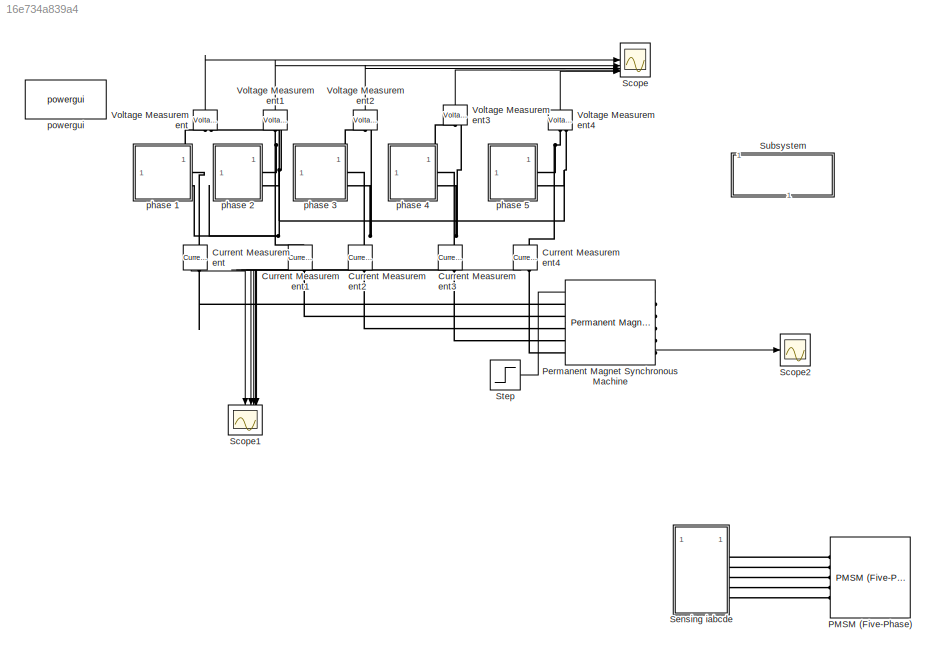
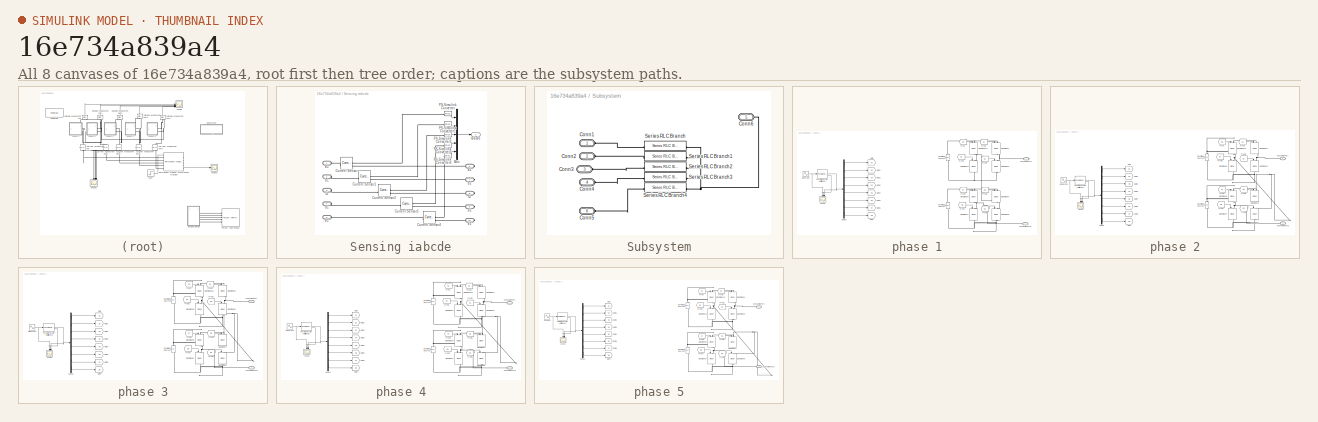
[diagram: thumbnail index - all 8 canvases of the model, root first then tree order]
MODEL slx_16e734a839a4
KIND model
CONFIG AbsTol = auto
CONFIG EnableMultiTasking = off
CONFIG FixedStep = 1e-6
CONFIG MaxStep = auto
CONFIG MinStep = auto
CONFIG RelTol = 1e-3
CONFIG SampleTimeConstraint = Unconstrained
CONFIG SolverName = ode23tb
CONFIG StartTime = 0.0
CONFIG StopTime = 60e-3
BLOCK [Reference] Current Measurement  REF=spsCurrentMeasurementLib/Current Measurement
  LibrarySourceBlock = sps_lib/Sensors and Measurements/Current Measurement
  NameLocation = left
  SourceBlock = spsCurrentMeasurementLib/Current Measurement
  SourceType = Current Measurement
  UserDataPersistent = on
BLOCK [Reference] Current Measurement1  REF=spsCurrentMeasurementLib/Current Measurement
  LibrarySourceBlock = sps_lib/Sensors and Measurements/Current Measurement
  NameLocation = left
  SourceBlock = spsCurrentMeasurementLib/Current Measurement
  SourceType = Current Measurement
  UserDataPersistent = on
BLOCK [Reference] Current Measurement2  REF=spsCurrentMeasurementLib/Current Measurement
  LibrarySourceBlock = sps_lib/Sensors and Measurements/Current Measurement
  NameLocation = left
  SourceBlock = spsCurrentMeasurementLib/Current Measurement
  SourceType = Current Measurement
  UserDataPersistent = on
BLOCK [Reference] Current Measurement3  REF=spsCurrentMeasurementLib/Current Measurement
  LibrarySourceBlock = sps_lib/Sensors and Measurements/Current Measurement
  NameLocation = left
  SourceBlock = spsCurrentMeasurementLib/Current Measurement
  SourceType = Current Measurement
  UserDataPersistent = on
BLOCK [Reference] Current Measurement4  REF=spsCurrentMeasurementLib/Current Measurement
  LibrarySourceBlock = sps_lib/Sensors and Measurements/Current Measurement
  NameLocation = left
  SourceBlock = spsCurrentMeasurementLib/Current Measurement
  SourceType = Current Measurement
  UserDataPersistent = on
BLOCK [Reference] PMSM (Five-Phase)  REF=ee_lib/Electromechanical/Permanent Magnet/PMSM (Five-Phase)
  SourceBlock = ee_lib/Electromechanical/Permanent Magnet/PMSM (Five-Phase)
  SourceType = PMSM (Five-Phase)
BLOCK [Reference] Permanent Magnet Synchronous Machine  REF=spsPermanentMagnetSynchronousMachineLib/Permanent Magnet
Synchronous Machine
  LibrarySourceBlock = sps_lib/Electrical Machines/Permanent Magnet\nSynchronous Machine
  SourceBlock = spsPermanentMagnetSynchronousMachineLib/Permanent Magnet\nSynchronous Machine
  SourceType = Permanent Magnet Synchronous Machine
BLOCK [Scope] Scope
  Floating = off
  NumInputPorts = 5
  ScopeSpecificationString = Simulink.scopes.TimeScopeBlockCfg('CurrentConfiguration', extmgr.ConfigurationSet(extmgr.Configuration('Core','General UI',true),extmgr.Configuration('Core','Source UI',true),extmgr.Configuration('Sources','WiredSimulink',true,'DataLogging',true,'DataLoggingSaveFormat','StructureWithTime'),extmgr.Configuration('Visuals','Time Domain',true,'SerializedDisplays',{struct('MinYLimReal','-250.00198','Ma...<+3684ch>
BLOCK [Scope] Scope1
  Floating = off
  NameLocation = left
  NumInputPorts = 5
  ScopeSpecificationString = Simulink.scopes.TimeScopeBlockCfg('CurrentConfiguration', extmgr.ConfigurationSet(extmgr.Configuration('Core','General UI',true),extmgr.Configuration('Core','Source UI',true),extmgr.Configuration('Sources','WiredSimulink',true,'DataLoggingVariableName','ScopeData2','DataLogging',true,'DataLoggingSaveFormat','StructureWithTime'),extmgr.Configuration('Visuals','Time Domain',true,'SerializedDisplays'...<+1578ch>
BLOCK [Scope] Scope2
  Floating = off
  NumInputPorts = 1
  ScopeSpecificationString = Simulink.scopes.TimeScopeBlockCfg('CurrentConfiguration', extmgr.ConfigurationSet(extmgr.Configuration('Core','General UI',true),extmgr.Configuration('Core','Source UI',true),extmgr.Configuration('Sources','WiredSimulink',true,'DataLoggingVariableName','ScopeData1','DataLogging',true,'DataLoggingSaveFormat','StructureWithTime'),extmgr.Configuration('Visuals','Time Domain',true,'SerializedDisplays'...<+2581ch>
BLOCK [SubSystem] Sensing iabcde
  PortSchema = {"entries":[{"content":{"sides":[{"content":{"connectorIds":["LConn1","LConn2","LConn3","LConn4","LConn5"]},"type":"ConnectorPlacement.EquallySpacedRectSide","uuid":"7a2f7a7f-4f61-4830-8af9-76fe1a0e4bc0"},{"content":{"connectorIds":["RConn1","RConn2","RConn3","RConn4","RConn5"],"side":"RIGHT"},"type":"ConnectorPlacement.EquallySpacedRectSide","uuid":"9fb6080c-3863-4271-b1e9-f7c8a3a18534"},{"conten...<+467ch>
BLOCK [Reference] Sensing iabcde/Current Sensor  REF=fl_lib/Electrical/Electrical Sensors/Current Sensor
  SourceBlock = fl_lib/Electrical/Electrical Sensors/Current Sensor
  SourceType = Current Sensor
BLOCK [Reference] Sensing iabcde/Current Sensor1  REF=fl_lib/Electrical/Electrical Sensors/Current Sensor
  SourceBlock = fl_lib/Electrical/Electrical Sensors/Current Sensor
  SourceType = Current Sensor
BLOCK [Reference] Sensing iabcde/Current Sensor2  REF=fl_lib/Electrical/Electrical Sensors/Current Sensor
  SourceBlock = fl_lib/Electrical/Electrical Sensors/Current Sensor
  SourceType = Current Sensor
BLOCK [Reference] Sensing iabcde/Current Sensor3  REF=fl_lib/Electrical/Electrical Sensors/Current Sensor
  SourceBlock = fl_lib/Electrical/Electrical Sensors/Current Sensor
  SourceType = Current Sensor
BLOCK [Reference] Sensing iabcde/Current Sensor4  REF=fl_lib/Electrical/Electrical Sensors/Current Sensor
  SourceBlock = fl_lib/Electrical/Electrical Sensors/Current Sensor
  SourceType = Current Sensor
BLOCK [Outport] Sensing iabcde/Iabcde
BLOCK [Mux] Sensing iabcde/Mux
  DisplayOption = bar
  Inputs = 5
BLOCK [Reference] Sensing iabcde/PS-Simulink Converter  REF=nesl_utility/PS-Simulink
Converter
  AttributesFormatString = %<Unit>
  SourceBlock = nesl_utility/PS-Simulink\nConverter
  SourceType = PS-Simulink\nConverter
BLOCK [Reference] Sensing iabcde/PS-Simulink Converter1  REF=nesl_utility/PS-Simulink
Converter
  AttributesFormatString = %<Unit>
  SourceBlock = nesl_utility/PS-Simulink\nConverter
  SourceType = PS-Simulink\nConverter
BLOCK [Reference] Sensing iabcde/PS-Simulink Converter2  REF=nesl_utility/PS-Simulink
Converter
  AttributesFormatString = %<Unit>
  SourceBlock = nesl_utility/PS-Simulink\nConverter
  SourceType = PS-Simulink\nConverter
BLOCK [Reference] Sensing iabcde/PS-Simulink Converter3  REF=nesl_utility/PS-Simulink
Converter
  AttributesFormatString = %<Unit>
  SourceBlock = nesl_utility/PS-Simulink\nConverter
  SourceType = PS-Simulink\nConverter
BLOCK [Reference] Sensing iabcde/PS-Simulink Converter4  REF=nesl_utility/PS-Simulink
Converter
  AttributesFormatString = %<Unit>
  SourceBlock = nesl_utility/PS-Simulink\nConverter
  SourceType = PS-Simulink\nConverter
BLOCK [PMIOPort] Sensing iabcde/a1
  Side = Left
BLOCK [PMIOPort] Sensing iabcde/a2
  Port = 6
  Side = Right
BLOCK [PMIOPort] Sensing iabcde/b1
  Port = 2
  Side = Left
BLOCK [PMIOPort] Sensing iabcde/b2
  Port = 7
  Side = Right
BLOCK [PMIOPort] Sensing iabcde/c1
  Port = 3
  Side = Left
BLOCK [PMIOPort] Sensing iabcde/c2
  Port = 8
  Side = Right
BLOCK [PMIOPort] Sensing iabcde/d1
  Port = 4
  Side = Left
BLOCK [PMIOPort] Sensing iabcde/d2
  Port = 9
  Side = Right
BLOCK [PMIOPort] Sensing iabcde/e1
  Port = 5
  Side = Left
BLOCK [PMIOPort] Sensing iabcde/e2
  Port = 10
  Side = Right
BLOCK [Step] Step
  SampleTime = 0
  Time = 0.5
BLOCK [SubSystem] Subsystem
  NameLocation = left
BLOCK [PMIOPort] Subsystem/Conn1
  Side = Left
BLOCK [PMIOPort] Subsystem/Conn2
  Port = 2
  Side = Left
BLOCK [PMIOPort] Subsystem/Conn3
  Port = 3
  Side = Left
BLOCK [PMIOPort] Subsystem/Conn4
  Port = 4
  Side = Left
BLOCK [PMIOPort] Subsystem/Conn5
  Port = 6
  Side = Left
BLOCK [PMIOPort] Subsystem/Conn6
  Port = 5
  Side = Left
BLOCK [Reference] Subsystem/Series RLC Branch  REF=spsSeriesRLCBranchLib/Series RLC Branch
  LibrarySourceBlock = sps_lib/Passives/Series RLC Branch
  SourceBlock = spsSeriesRLCBranchLib/Series RLC Branch
  SourceType = Series RLC Branch
BLOCK [Reference] Subsystem/Series RLC Branch1  REF=spsSeriesRLCBranchLib/Series RLC Branch
  LibrarySourceBlock = sps_lib/Passives/Series RLC Branch
  SourceBlock = spsSeriesRLCBranchLib/Series RLC Branch
  SourceType = Series RLC Branch
BLOCK [Reference] Subsystem/Series RLC Branch2  REF=spsSeriesRLCBranchLib/Series RLC Branch
  LibrarySourceBlock = sps_lib/Passives/Series RLC Branch
  SourceBlock = spsSeriesRLCBranchLib/Series RLC Branch
  SourceType = Series RLC Branch
BLOCK [Reference] Subsystem/Series RLC Branch3  REF=spsSeriesRLCBranchLib/Series RLC Branch
  LibrarySourceBlock = sps_lib/Passives/Series RLC Branch
  SourceBlock = spsSeriesRLCBranchLib/Series RLC Branch
  SourceType = Series RLC Branch
BLOCK [Reference] Subsystem/Series RLC Branch4  REF=spsSeriesRLCBranchLib/Series RLC Branch
  LibrarySourceBlock = sps_lib/Passives/Series RLC Branch
  SourceBlock = spsSeriesRLCBranchLib/Series RLC Branch
  SourceType = Series RLC Branch
BLOCK [Reference] Voltage Measurement  REF=spsVoltageMeasurementLib/Voltage Measurement
  LibrarySourceBlock = sps_lib/Sensors and Measurements/Voltage Measurement
  NameLocation = right
  SourceBlock = spsVoltageMeasurementLib/Voltage Measurement
  SourceType = Voltage Measurement
  UserDataPersistent = on
BLOCK [Reference] Voltage Measurement1  REF=spsVoltageMeasurementLib/Voltage Measurement
  LibrarySourceBlock = sps_lib/Sensors and Measurements/Voltage Measurement
  NameLocation = right
  SourceBlock = spsVoltageMeasurementLib/Voltage Measurement
  SourceType = Voltage Measurement
  UserDataPersistent = on
BLOCK [Reference] Voltage Measurement2  REF=spsVoltageMeasurementLib/Voltage Measurement
  LibrarySourceBlock = sps_lib/Sensors and Measurements/Voltage Measurement
  NameLocation = right
  SourceBlock = spsVoltageMeasurementLib/Voltage Measurement
  SourceType = Voltage Measurement
  UserDataPersistent = on
BLOCK [Reference] Voltage Measurement3  REF=spsVoltageMeasurementLib/Voltage Measurement
  LibrarySourceBlock = sps_lib/Sensors and Measurements/Voltage Measurement
  NameLocation = right
  SourceBlock = spsVoltageMeasurementLib/Voltage Measurement
  SourceType = Voltage Measurement
  UserDataPersistent = on
BLOCK [Reference] Voltage Measurement4  REF=spsVoltageMeasurementLib/Voltage Measurement
  LibrarySourceBlock = sps_lib/Sensors and Measurements/Voltage Measurement
  NameLocation = right
  SourceBlock = spsVoltageMeasurementLib/Voltage Measurement
  SourceType = Voltage Measurement
  UserDataPersistent = on
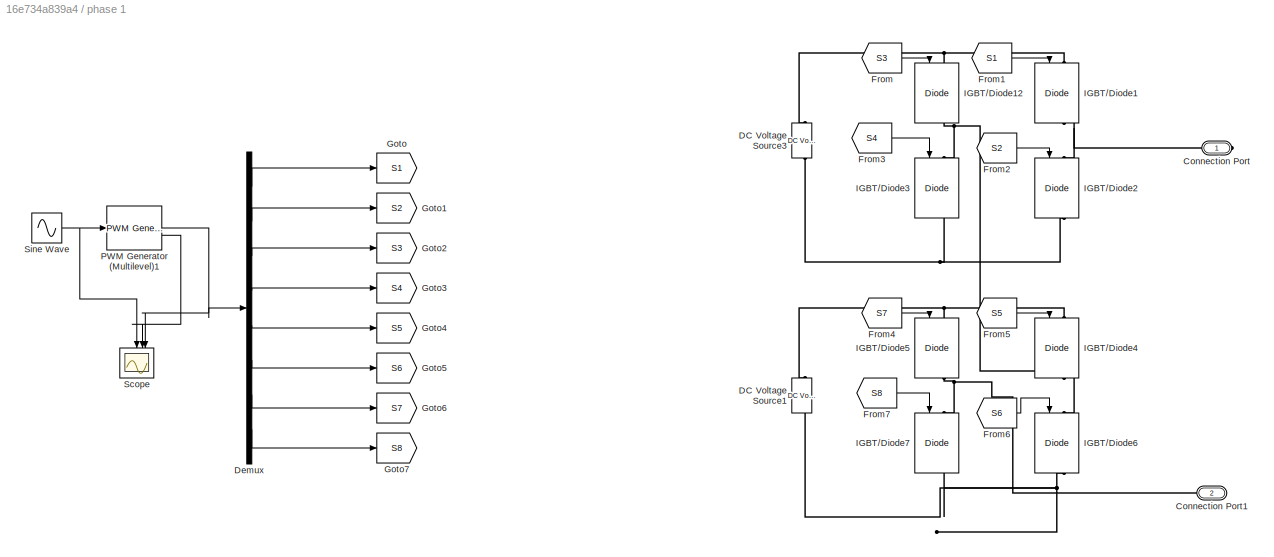
BLOCK [SubSystem] phase 1
BLOCK [PMIOPort] phase 1/Connection Port
  NameLocation = top
  Side = Right
BLOCK [PMIOPort] phase 1/Connection Port1
  NameLocation = top
  Port = 2
  Side = Right
BLOCK [Reference] phase 1/DC Voltage Source1  REF=spsDCVoltageSourceLib/DC Voltage Source
  LibrarySourceBlock = sps_lib/Sources/DC Voltage Source
  SourceBlock = spsDCVoltageSourceLib/DC Voltage Source
  SourceType = DC Voltage Source
BLOCK [Reference] phase 1/DC Voltage Source3  REF=spsDCVoltageSourceLib/DC Voltage Source
  LibrarySourceBlock = sps_lib/Sources/DC Voltage Source
  SourceBlock = spsDCVoltageSourceLib/DC Voltage Source
  SourceType = DC Voltage Source
BLOCK [Demux] phase 1/Demux
  Outputs = 8
BLOCK [From] phase 1/From
  GotoTag = S3
BLOCK [From] phase 1/From1
  GotoTag = S1
BLOCK [From] phase 1/From2
  GotoTag = S2
BLOCK [From] phase 1/From3
  GotoTag = S4
BLOCK [From] phase 1/From4
  GotoTag = S7
BLOCK [From] phase 1/From5
  GotoTag = S5
BLOCK [From] phase 1/From6
  GotoTag = S6
BLOCK [From] phase 1/From7
  GotoTag = S8
BLOCK [Goto] phase 1/Goto
  GotoTag = S1
BLOCK [Goto] phase 1/Goto1
  GotoTag = S2
BLOCK [Goto] phase 1/Goto2
  GotoTag = S3
BLOCK [Goto] phase 1/Goto3
  GotoTag = S4
BLOCK [Goto] phase 1/Goto4
  GotoTag = S5
BLOCK [Goto] phase 1/Goto5
  GotoTag = S6
BLOCK [Goto] phase 1/Goto6
  GotoTag = S7
BLOCK [Goto] phase 1/Goto7
  GotoTag = S8
BLOCK [Reference] phase 1/IGBT//Diode1  REF=spsIGBTDiodeLib/IGBT//Diode
  LibrarySourceBlock = sps_lib/Power Electronics/IGBT//Diode
  NameLocation = left
  SourceBlock = spsIGBTDiodeLib/IGBT//Diode
  SourceType = IGBT/Diode
BLOCK [Reference] phase 1/IGBT//Diode12  REF=spsIGBTDiodeLib/IGBT//Diode
  LibrarySourceBlock = sps_lib/Power Electronics/IGBT//Diode
  NameLocation = left
  SourceBlock = spsIGBTDiodeLib/IGBT//Diode
  SourceType = IGBT/Diode
BLOCK [Reference] phase 1/IGBT//Diode2  REF=spsIGBTDiodeLib/IGBT//Diode
  LibrarySourceBlock = sps_lib/Power Electronics/IGBT//Diode
  NameLocation = left
  SourceBlock = spsIGBTDiodeLib/IGBT//Diode
  SourceType = IGBT/Diode
BLOCK [Reference] phase 1/IGBT//Diode3  REF=spsIGBTDiodeLib/IGBT//Diode
  LibrarySourceBlock = sps_lib/Power Electronics/IGBT//Diode
  NameLocation = left
  SourceBlock = spsIGBTDiodeLib/IGBT//Diode
  SourceType = IGBT/Diode
BLOCK [Reference] phase 1/IGBT//Diode4  REF=spsIGBTDiodeLib/IGBT//Diode
  LibrarySourceBlock = sps_lib/Power Electronics/IGBT//Diode
  NameLocation = left
  SourceBlock = spsIGBTDiodeLib/IGBT//Diode
  SourceType = IGBT/Diode
BLOCK [Reference] phase 1/IGBT//Diode5  REF=spsIGBTDiodeLib/IGBT//Diode
  LibrarySourceBlock = sps_lib/Power Electronics/IGBT//Diode
  NameLocation = left
  SourceBlock = spsIGBTDiodeLib/IGBT//Diode
  SourceType = IGBT/Diode
BLOCK [Reference] phase 1/IGBT//Diode6  REF=spsIGBTDiodeLib/IGBT//Diode
  LibrarySourceBlock = sps_lib/Power Electronics/IGBT//Diode
  NameLocation = left
  SourceBlock = spsIGBTDiodeLib/IGBT//Diode
  SourceType = IGBT/Diode
BLOCK [Reference] phase 1/IGBT//Diode7  REF=spsIGBTDiodeLib/IGBT//Diode
  LibrarySourceBlock = sps_lib/Power Electronics/IGBT//Diode
  NameLocation = left
  SourceBlock = spsIGBTDiodeLib/IGBT//Diode
  SourceType = IGBT/Diode
BLOCK [Reference] phase 1/PWM Generator (Multilevel)1  REF=spsPWMGeneratorMultilevelLib/PWM Generator
(Multilevel)
  LibrarySourceBlock = sps_lib/Power Electronics/Power Electronics Control/PWM Generator\n(Multilevel)
  SourceBlock = spsPWMGeneratorMultilevelLib/PWM Generator\n(Multilevel)
  SourceType = PWM Generator (Multilevel)
BLOCK [Scope] phase 1/Scope
  Floating = off
  NameLocation = left
  NumInputPorts = 3
  ScopeSpecificationString = Simulink.scopes.TimeScopeBlockCfg('CurrentConfiguration', extmgr.ConfigurationSet(extmgr.Configuration('Core','General UI',true,'FigureColor',[1 1 1]),extmgr.Configuration('Core','Source UI',true),extmgr.Configuration('Sources','WiredSimulink',true,'DataLoggingVariableName','ScopeData1'),extmgr.Configuration('Visuals','Time Domain',true,'SerializedDisplays',{struct('MinYLimReal','-1.25','MaxYLimRe...<+3700ch>
BLOCK [Sin] phase 1/Sine Wave
  Frequency = 50*2*pi
  Phase = Ref_ph
  SampleTime = 0
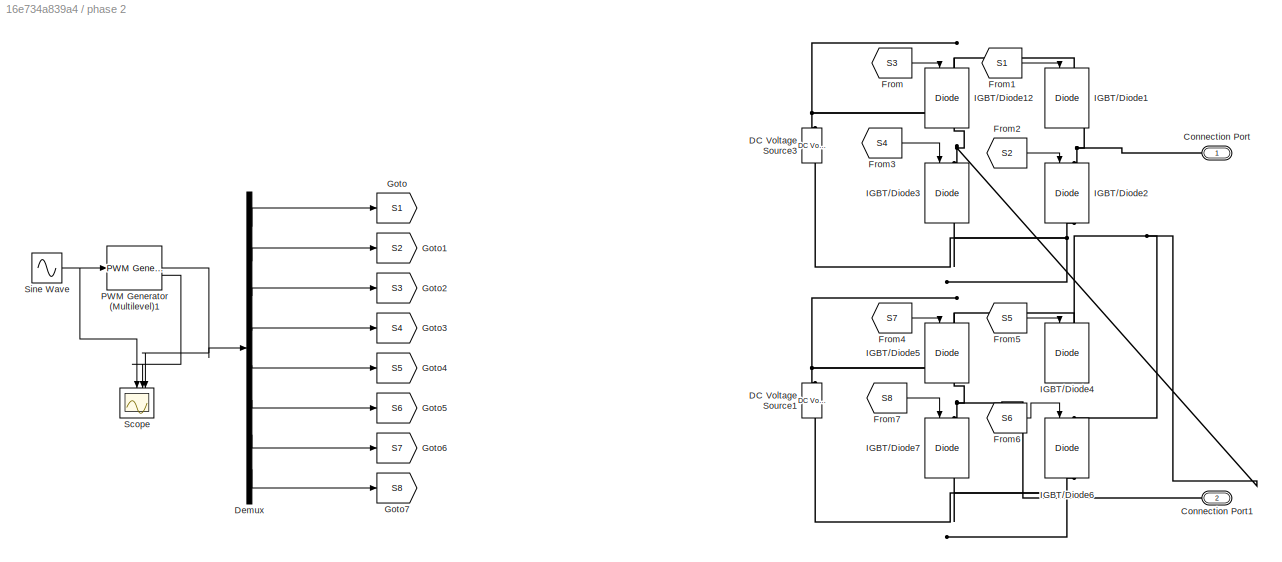
BLOCK [SubSystem] phase 2
BLOCK [PMIOPort] phase 2/Connection Port
  NameLocation = top
  Side = Right
BLOCK [PMIOPort] phase 2/Connection Port1
  NameLocation = top
  Port = 2
  Side = Right
BLOCK [Reference] phase 2/DC Voltage Source1  REF=spsDCVoltageSourceLib/DC Voltage Source
  LibrarySourceBlock = sps_lib/Sources/DC Voltage Source
  SourceBlock = spsDCVoltageSourceLib/DC Voltage Source
  SourceType = DC Voltage Source
BLOCK [Reference] phase 2/DC Voltage Source3  REF=spsDCVoltageSourceLib/DC Voltage Source
  LibrarySourceBlock = sps_lib/Sources/DC Voltage Source
  SourceBlock = spsDCVoltageSourceLib/DC Voltage Source
  SourceType = DC Voltage Source
BLOCK [Demux] phase 2/Demux
  Outputs = 8
BLOCK [From] phase 2/From
  GotoTag = S3
BLOCK [From] phase 2/From1
  GotoTag = S1
BLOCK [From] phase 2/From2
  GotoTag = S2
BLOCK [From] phase 2/From3
  GotoTag = S4
BLOCK [From] phase 2/From4
  GotoTag = S7
BLOCK [From] phase 2/From5
  GotoTag = S5
BLOCK [From] phase 2/From6
  GotoTag = S6
BLOCK [From] phase 2/From7
  GotoTag = S8
BLOCK [Goto] phase 2/Goto
  GotoTag = S1
BLOCK [Goto] phase 2/Goto1
  GotoTag = S2
BLOCK [Goto] phase 2/Goto2
  GotoTag = S3
BLOCK [Goto] phase 2/Goto3
  GotoTag = S4
BLOCK [Goto] phase 2/Goto4
  GotoTag = S5
BLOCK [Goto] phase 2/Goto5
  GotoTag = S6
BLOCK [Goto] phase 2/Goto6
  GotoTag = S7
BLOCK [Goto] phase 2/Goto7
  GotoTag = S8
BLOCK [Reference] phase 2/IGBT//Diode1  REF=spsIGBTDiodeLib/IGBT//Diode
  LibrarySourceBlock = sps_lib/Power Electronics/IGBT//Diode
  NameLocation = left
  SourceBlock = spsIGBTDiodeLib/IGBT//Diode
  SourceType = IGBT/Diode
BLOCK [Reference] phase 2/IGBT//Diode12  REF=spsIGBTDiodeLib/IGBT//Diode
  LibrarySourceBlock = sps_lib/Power Electronics/IGBT//Diode
  NameLocation = left
  SourceBlock = spsIGBTDiodeLib/IGBT//Diode
  SourceType = IGBT/Diode
BLOCK [Reference] phase 2/IGBT//Diode2  REF=spsIGBTDiodeLib/IGBT//Diode
  LibrarySourceBlock = sps_lib/Power Electronics/IGBT//Diode
  NameLocation = left
  SourceBlock = spsIGBTDiodeLib/IGBT//Diode
  SourceType = IGBT/Diode
BLOCK [Reference] phase 2/IGBT//Diode3  REF=spsIGBTDiodeLib/IGBT//Diode
  LibrarySourceBlock = sps_lib/Power Electronics/IGBT//Diode
  NameLocation = left
  SourceBlock = spsIGBTDiodeLib/IGBT//Diode
  SourceType = IGBT/Diode
BLOCK [Reference] phase 2/IGBT//Diode4  REF=spsIGBTDiodeLib/IGBT//Diode
  LibrarySourceBlock = sps_lib/Power Electronics/IGBT//Diode
  NameLocation = left
  SourceBlock = spsIGBTDiodeLib/IGBT//Diode
  SourceType = IGBT/Diode
BLOCK [Reference] phase 2/IGBT//Diode5  REF=spsIGBTDiodeLib/IGBT//Diode
  LibrarySourceBlock = sps_lib/Power Electronics/IGBT//Diode
  NameLocation = left
  SourceBlock = spsIGBTDiodeLib/IGBT//Diode
  SourceType = IGBT/Diode
BLOCK [Reference] phase 2/IGBT//Diode6  REF=spsIGBTDiodeLib/IGBT//Diode
  LibrarySourceBlock = sps_lib/Power Electronics/IGBT//Diode
  NameLocation = left
  SourceBlock = spsIGBTDiodeLib/IGBT//Diode
  SourceType = IGBT/Diode
BLOCK [Reference] phase 2/IGBT//Diode7  REF=spsIGBTDiodeLib/IGBT//Diode
  LibrarySourceBlock = sps_lib/Power Electronics/IGBT//Diode
  NameLocation = left
  SourceBlock = spsIGBTDiodeLib/IGBT//Diode
  SourceType = IGBT/Diode
BLOCK [Reference] phase 2/PWM Generator (Multilevel)1  REF=spsPWMGeneratorMultilevelLib/PWM Generator
(Multilevel)
  LibrarySourceBlock = sps_lib/Power Electronics/Power Electronics Control/PWM Generator\n(Multilevel)
  SourceBlock = spsPWMGeneratorMultilevelLib/PWM Generator\n(Multilevel)
  SourceType = PWM Generator (Multilevel)
BLOCK [Scope] phase 2/Scope
  Floating = off
  NameLocation = left
  NumInputPorts = 3
  ScopeSpecificationString = Simulink.scopes.TimeScopeBlockCfg('CurrentConfiguration', extmgr.ConfigurationSet(extmgr.Configuration('Core','General UI',true,'FigureColor',[1 1 1]),extmgr.Configuration('Core','Source UI',true),extmgr.Configuration('Sources','WiredSimulink',true,'DataLoggingVariableName','ScopeData1'),extmgr.Configuration('Visuals','Time Domain',true,'SerializedDisplays',{struct('MinYLimReal','-1.00449','MaxYLi...<+3421ch>  <repeated x4 — deduplicated; at blocks: Scope>
BLOCK [Sin] phase 2/Sine Wave
  Frequency = 50*2*pi
  Phase = Ref_ph
  SampleTime = 0
BLOCK [SubSystem] phase 3
BLOCK [PMIOPort] phase 3/Connection Port
  NameLocation = top
  Side = Right
BLOCK [PMIOPort] phase 3/Connection Port1
  NameLocation = top
  Port = 2
  Side = Right
BLOCK [Reference] phase 3/DC Voltage Source1  REF=spsDCVoltageSourceLib/DC Voltage Source
  LibrarySourceBlock = sps_lib/Sources/DC Voltage Source
  SourceBlock = spsDCVoltageSourceLib/DC Voltage Source
  SourceType = DC Voltage Source
BLOCK [Reference] phase 3/DC Voltage Source3  REF=spsDCVoltageSourceLib/DC Voltage Source
  LibrarySourceBlock = sps_lib/Sources/DC Voltage Source
  SourceBlock = spsDCVoltageSourceLib/DC Voltage Source
  SourceType = DC Voltage Source
BLOCK [Demux] phase 3/Demux
  Outputs = 8
BLOCK [From] phase 3/From
  GotoTag = S3
BLOCK [From] phase 3/From1
  GotoTag = S1
BLOCK [From] phase 3/From2
  GotoTag = S2
BLOCK [From] phase 3/From3
  GotoTag = S4
BLOCK [From] phase 3/From4
  GotoTag = S7
BLOCK [From] phase 3/From5
  GotoTag = S5
BLOCK [From] phase 3/From6
  GotoTag = S6
BLOCK [From] phase 3/From7
  GotoTag = S8
BLOCK [Goto] phase 3/Goto
  GotoTag = S1
BLOCK [Goto] phase 3/Goto1
  GotoTag = S2
BLOCK [Goto] phase 3/Goto2
  GotoTag = S3
BLOCK [Goto] phase 3/Goto3
  GotoTag = S4
BLOCK [Goto] phase 3/Goto4
  GotoTag = S5
BLOCK [Goto] phase 3/Goto5
  GotoTag = S6
BLOCK [Goto] phase 3/Goto6
  GotoTag = S7
BLOCK [Goto] phase 3/Goto7
  GotoTag = S8
BLOCK [Reference] phase 3/IGBT//Diode1  REF=spsIGBTDiodeLib/IGBT//Diode
  LibrarySourceBlock = sps_lib/Power Electronics/IGBT//Diode
  NameLocation = left
  SourceBlock = spsIGBTDiodeLib/IGBT//Diode
  SourceType = IGBT/Diode
BLOCK [Reference] phase 3/IGBT//Diode12  REF=spsIGBTDiodeLib/IGBT//Diode
  LibrarySourceBlock = sps_lib/Power Electronics/IGBT//Diode
  NameLocation = left
  SourceBlock = spsIGBTDiodeLib/IGBT//Diode
  SourceType = IGBT/Diode
BLOCK [Reference] phase 3/IGBT//Diode2  REF=spsIGBTDiodeLib/IGBT//Diode
  LibrarySourceBlock = sps_lib/Power Electronics/IGBT//Diode
  NameLocation = left
  SourceBlock = spsIGBTDiodeLib/IGBT//Diode
  SourceType = IGBT/Diode
BLOCK [Reference] phase 3/IGBT//Diode3  REF=spsIGBTDiodeLib/IGBT//Diode
  LibrarySourceBlock = sps_lib/Power Electronics/IGBT//Diode
  NameLocation = left
  SourceBlock = spsIGBTDiodeLib/IGBT//Diode
  SourceType = IGBT/Diode
BLOCK [Reference] phase 3/IGBT//Diode4  REF=spsIGBTDiodeLib/IGBT//Diode
  LibrarySourceBlock = sps_lib/Power Electronics/IGBT//Diode
  NameLocation = left
  SourceBlock = spsIGBTDiodeLib/IGBT//Diode
  SourceType = IGBT/Diode
BLOCK [Reference] phase 3/IGBT//Diode5  REF=spsIGBTDiodeLib/IGBT//Diode
  LibrarySourceBlock = sps_lib/Power Electronics/IGBT//Diode
  NameLocation = left
  SourceBlock = spsIGBTDiodeLib/IGBT//Diode
  SourceType = IGBT/Diode
BLOCK [Reference] phase 3/IGBT//Diode6  REF=spsIGBTDiodeLib/IGBT//Diode
  LibrarySourceBlock = sps_lib/Power Electronics/IGBT//Diode
  NameLocation = left
  SourceBlock = spsIGBTDiodeLib/IGBT//Diode
  SourceType = IGBT/Diode
BLOCK [Reference] phase 3/IGBT//Diode7  REF=spsIGBTDiodeLib/IGBT//Diode
  LibrarySourceBlock = sps_lib/Power Electronics/IGBT//Diode
  NameLocation = left
  SourceBlock = spsIGBTDiodeLib/IGBT//Diode
  SourceType = IGBT/Diode
BLOCK [Reference] phase 3/PWM Generator (Multilevel)1  REF=spsPWMGeneratorMultilevelLib/PWM Generator
(Multilevel)
  LibrarySourceBlock = sps_lib/Power Electronics/Power Electronics Control/PWM Generator\n(Multilevel)
  SourceBlock = spsPWMGeneratorMultilevelLib/PWM Generator\n(Multilevel)
  SourceType = PWM Generator (Multilevel)
BLOCK [Scope] phase 3/Scope
  Floating = off
  NameLocation = left
  NumInputPorts = 3
BLOCK [Sin] phase 3/Sine Wave
  Frequency = 50*2*pi
  Phase = Ref_ph
  SampleTime = 0
BLOCK [SubSystem] phase 4
BLOCK [PMIOPort] phase 4/Connection Port
  NameLocation = top
  Side = Right
BLOCK [PMIOPort] phase 4/Connection Port1
  NameLocation = top
  Port = 2
  Side = Right
BLOCK [Reference] phase 4/DC Voltage Source1  REF=spsDCVoltageSourceLib/DC Voltage Source
  LibrarySourceBlock = sps_lib/Sources/DC Voltage Source
  SourceBlock = spsDCVoltageSourceLib/DC Voltage Source
  SourceType = DC Voltage Source
BLOCK [Reference] phase 4/DC Voltage Source3  REF=spsDCVoltageSourceLib/DC Voltage Source
  LibrarySourceBlock = sps_lib/Sources/DC Voltage Source
  SourceBlock = spsDCVoltageSourceLib/DC Voltage Source
  SourceType = DC Voltage Source
BLOCK [Demux] phase 4/Demux
  Outputs = 8
BLOCK [From] phase 4/From
  GotoTag = S3
BLOCK [From] phase 4/From1
  GotoTag = S1
BLOCK [From] phase 4/From2
  GotoTag = S2
BLOCK [From] phase 4/From3
  GotoTag = S4
BLOCK [From] phase 4/From4
  GotoTag = S7
BLOCK [From] phase 4/From5
  GotoTag = S5
BLOCK [From] phase 4/From6
  GotoTag = S6
BLOCK [From] phase 4/From7
  GotoTag = S8
BLOCK [Goto] phase 4/Goto
  GotoTag = S1
BLOCK [Goto] phase 4/Goto1
  GotoTag = S2
BLOCK [Goto] phase 4/Goto2
  GotoTag = S3
BLOCK [Goto] phase 4/Goto3
  GotoTag = S4
BLOCK [Goto] phase 4/Goto4
  GotoTag = S5
BLOCK [Goto] phase 4/Goto5
  GotoTag = S6
BLOCK [Goto] phase 4/Goto6
  GotoTag = S7
BLOCK [Goto] phase 4/Goto7
  GotoTag = S8
BLOCK [Reference] phase 4/IGBT//Diode1  REF=spsIGBTDiodeLib/IGBT//Diode
  LibrarySourceBlock = sps_lib/Power Electronics/IGBT//Diode
  NameLocation = left
  SourceBlock = spsIGBTDiodeLib/IGBT//Diode
  SourceType = IGBT/Diode
BLOCK [Reference] phase 4/IGBT//Diode12  REF=spsIGBTDiodeLib/IGBT//Diode
  LibrarySourceBlock = sps_lib/Power Electronics/IGBT//Diode
  NameLocation = left
  SourceBlock = spsIGBTDiodeLib/IGBT//Diode
  SourceType = IGBT/Diode
BLOCK [Reference] phase 4/IGBT//Diode2  REF=spsIGBTDiodeLib/IGBT//Diode
  LibrarySourceBlock = sps_lib/Power Electronics/IGBT//Diode
  NameLocation = left
  SourceBlock = spsIGBTDiodeLib/IGBT//Diode
  SourceType = IGBT/Diode
BLOCK [Reference] phase 4/IGBT//Diode3  REF=spsIGBTDiodeLib/IGBT//Diode
  LibrarySourceBlock = sps_lib/Power Electronics/IGBT//Diode
  NameLocation = left
  SourceBlock = spsIGBTDiodeLib/IGBT//Diode
  SourceType = IGBT/Diode
BLOCK [Reference] phase 4/IGBT//Diode4  REF=spsIGBTDiodeLib/IGBT//Diode
  LibrarySourceBlock = sps_lib/Power Electronics/IGBT//Diode
  NameLocation = left
  SourceBlock = spsIGBTDiodeLib/IGBT//Diode
  SourceType = IGBT/Diode
BLOCK [Reference] phase 4/IGBT//Diode5  REF=spsIGBTDiodeLib/IGBT//Diode
  LibrarySourceBlock = sps_lib/Power Electronics/IGBT//Diode
  NameLocation = left
  SourceBlock = spsIGBTDiodeLib/IGBT//Diode
  SourceType = IGBT/Diode
BLOCK [Reference] phase 4/IGBT//Diode6  REF=spsIGBTDiodeLib/IGBT//Diode
  LibrarySourceBlock = sps_lib/Power Electronics/IGBT//Diode
  NameLocation = left
  SourceBlock = spsIGBTDiodeLib/IGBT//Diode
  SourceType = IGBT/Diode
BLOCK [Reference] phase 4/IGBT//Diode7  REF=spsIGBTDiodeLib/IGBT//Diode
  LibrarySourceBlock = sps_lib/Power Electronics/IGBT//Diode
  NameLocation = left
  SourceBlock = spsIGBTDiodeLib/IGBT//Diode
  SourceType = IGBT/Diode
BLOCK [Reference] phase 4/PWM Generator (Multilevel)1  REF=spsPWMGeneratorMultilevelLib/PWM Generator
(Multilevel)
  LibrarySourceBlock = sps_lib/Power Electronics/Power Electronics Control/PWM Generator\n(Multilevel)
  SourceBlock = spsPWMGeneratorMultilevelLib/PWM Generator\n(Multilevel)
  SourceType = PWM Generator (Multilevel)
BLOCK [Scope] phase 4/Scope
  Floating = off
  NameLocation = left
  NumInputPorts = 3
BLOCK [Sin] phase 4/Sine Wave
  Frequency = 50*2*pi
  Phase = Ref_ph
  SampleTime = 0
BLOCK [SubSystem] phase 5
BLOCK [PMIOPort] phase 5/Connection Port
  NameLocation = top
  Side = Right
BLOCK [PMIOPort] phase 5/Connection Port1
  NameLocation = top
  Port = 2
  Side = Right
BLOCK [Reference] phase 5/DC Voltage Source1  REF=spsDCVoltageSourceLib/DC Voltage Source
  LibrarySourceBlock = sps_lib/Sources/DC Voltage Source
  SourceBlock = spsDCVoltageSourceLib/DC Voltage Source
  SourceType = DC Voltage Source
BLOCK [Reference] phase 5/DC Voltage Source3  REF=spsDCVoltageSourceLib/DC Voltage Source
  LibrarySourceBlock = sps_lib/Sources/DC Voltage Source
  SourceBlock = spsDCVoltageSourceLib/DC Voltage Source
  SourceType = DC Voltage Source
BLOCK [Demux] phase 5/Demux
  Outputs = 8
BLOCK [From] phase 5/From
  GotoTag = S3
BLOCK [From] phase 5/From1
  GotoTag = S1
BLOCK [From] phase 5/From2
  GotoTag = S2
BLOCK [From] phase 5/From3
  GotoTag = S4
BLOCK [From] phase 5/From4
  GotoTag = S7
BLOCK [From] phase 5/From5
  GotoTag = S5
BLOCK [From] phase 5/From6
  GotoTag = S6
BLOCK [From] phase 5/From7
  GotoTag = S8
BLOCK [Goto] phase 5/Goto
  GotoTag = S1
BLOCK [Goto] phase 5/Goto1
  GotoTag = S2
BLOCK [Goto] phase 5/Goto2
  GotoTag = S3
BLOCK [Goto] phase 5/Goto3
  GotoTag = S4
BLOCK [Goto] phase 5/Goto4
  GotoTag = S5
BLOCK [Goto] phase 5/Goto5
  GotoTag = S6
BLOCK [Goto] phase 5/Goto6
  GotoTag = S7
BLOCK [Goto] phase 5/Goto7
  GotoTag = S8
BLOCK [Reference] phase 5/IGBT//Diode1  REF=spsIGBTDiodeLib/IGBT//Diode
  LibrarySourceBlock = sps_lib/Power Electronics/IGBT//Diode
  NameLocation = left
  SourceBlock = spsIGBTDiodeLib/IGBT//Diode
  SourceType = IGBT/Diode
BLOCK [Reference] phase 5/IGBT//Diode12  REF=spsIGBTDiodeLib/IGBT//Diode
  LibrarySourceBlock = sps_lib/Power Electronics/IGBT//Diode
  NameLocation = left
  SourceBlock = spsIGBTDiodeLib/IGBT//Diode
  SourceType = IGBT/Diode
BLOCK [Reference] phase 5/IGBT//Diode2  REF=spsIGBTDiodeLib/IGBT//Diode
  LibrarySourceBlock = sps_lib/Power Electronics/IGBT//Diode
  NameLocation = left
  SourceBlock = spsIGBTDiodeLib/IGBT//Diode
  SourceType = IGBT/Diode
BLOCK [Reference] phase 5/IGBT//Diode3  REF=spsIGBTDiodeLib/IGBT//Diode
  LibrarySourceBlock = sps_lib/Power Electronics/IGBT//Diode
  NameLocation = left
  SourceBlock = spsIGBTDiodeLib/IGBT//Diode
  SourceType = IGBT/Diode
BLOCK [Reference] phase 5/IGBT//Diode4  REF=spsIGBTDiodeLib/IGBT//Diode
  LibrarySourceBlock = sps_lib/Power Electronics/IGBT//Diode
  NameLocation = left
  SourceBlock = spsIGBTDiodeLib/IGBT//Diode
  SourceType = IGBT/Diode
BLOCK [Reference] phase 5/IGBT//Diode5  REF=spsIGBTDiodeLib/IGBT//Diode
  LibrarySourceBlock = sps_lib/Power Electronics/IGBT//Diode
  NameLocation = left
  SourceBlock = spsIGBTDiodeLib/IGBT//Diode
  SourceType = IGBT/Diode
BLOCK [Reference] phase 5/IGBT//Diode6  REF=spsIGBTDiodeLib/IGBT//Diode
  LibrarySourceBlock = sps_lib/Power Electronics/IGBT//Diode
  NameLocation = left
  SourceBlock = spsIGBTDiodeLib/IGBT//Diode
  SourceType = IGBT/Diode
BLOCK [Reference] phase 5/IGBT//Diode7  REF=spsIGBTDiodeLib/IGBT//Diode
  LibrarySourceBlock = sps_lib/Power Electronics/IGBT//Diode
  NameLocation = left
  SourceBlock = spsIGBTDiodeLib/IGBT//Diode
  SourceType = IGBT/Diode
BLOCK [Reference] phase 5/PWM Generator (Multilevel)1  REF=spsPWMGeneratorMultilevelLib/PWM Generator
(Multilevel)
  LibrarySourceBlock = sps_lib/Power Electronics/Power Electronics Control/PWM Generator\n(Multilevel)
  SourceBlock = spsPWMGeneratorMultilevelLib/PWM Generator\n(Multilevel)
  SourceType = PWM Generator (Multilevel)
BLOCK [Scope] phase 5/Scope
  Floating = off
  NameLocation = left
  NumInputPorts = 3
BLOCK [Sin] phase 5/Sine Wave
  Frequency = 50*2*pi
  Phase = Ref_ph
  SampleTime = 0
BLOCK [Reference] powergui  REF=sps_lib/powergui
  LibrarySourceBlock = sps_lib/powergui
  Priority = 1
  SourceBlock = sps_lib/powergui
  SourceType = PSB option menu block
LINE Current Measurement1:1 -> Scope1:2
LINE Current Measurement2:1 -> Scope1:3
LINE Current Measurement3:1 -> Scope1:4
LINE Current Measurement4:1 -> Scope1:5
LINE Current Measurement:1 -> Scope1:1
LINE Permanent Magnet Synchronous Machine:1 -> Scope2:1
LINE Sensing iabcde/Mux:1 -> Sensing iabcde/Iabcde:1
LINE Sensing iabcde/PS-Simulink Converter1:1 -> Sensing iabcde/Mux:2
LINE Sensing iabcde/PS-Simulink Converter2:1 -> Sensing iabcde/Mux:3
LINE Sensing iabcde/PS-Simulink Converter3:1 -> Sensing iabcde/Mux:4
LINE Sensing iabcde/PS-Simulink Converter4:1 -> Sensing iabcde/Mux:5
LINE Sensing iabcde/PS-Simulink Converter:1 -> Sensing iabcde/Mux:1
LINE Step:1 -> Permanent Magnet Synchronous Machine:1
LINE Voltage Measurement1:1 -> Scope:2
LINE Voltage Measurement2:1 -> Scope:3
LINE Voltage Measurement3:1 -> Scope:4
LINE Voltage Measurement4:1 -> Scope:5
LINE Voltage Measurement:1 -> Scope:1
LINE phase 1/Demux:1 -> phase 1/Goto:1
LINE phase 1/Demux:2 -> phase 1/Goto1:1
LINE phase 1/Demux:3 -> phase 1/Goto2:1
LINE phase 1/Demux:4 -> phase 1/Goto3:1
LINE phase 1/Demux:5 -> phase 1/Goto4:1
LINE phase 1/Demux:6 -> phase 1/Goto5:1
LINE phase 1/Demux:7 -> phase 1/Goto6:1
LINE phase 1/Demux:8 -> phase 1/Goto7:1
LINE phase 1/From1:1 -> phase 1/IGBT//Diode1:1
LINE phase 1/From2:1 -> phase 1/IGBT//Diode2:1
LINE phase 1/From3:1 -> phase 1/IGBT//Diode3:1
LINE phase 1/From4:1 -> phase 1/IGBT//Diode5:1
LINE phase 1/From5:1 -> phase 1/IGBT//Diode4:1
LINE phase 1/From6:1 -> phase 1/IGBT//Diode6:1
LINE phase 1/From7:1 -> phase 1/IGBT//Diode7:1
LINE phase 1/From:1 -> phase 1/IGBT//Diode12:1
NET phase 1/PWM Generator (Multilevel)1:1 -> phase 1/Demux:1, phase 1/Scope:3
LINE phase 1/PWM Generator (Multilevel)1:2 -> phase 1/Scope:2
NET phase 1/Sine Wave:1 -> phase 1/PWM Generator (Multilevel)1:1, phase 1/Scope:1
LINE phase 2/Demux:1 -> phase 2/Goto:1
LINE phase 2/Demux:2 -> phase 2/Goto1:1
LINE phase 2/Demux:3 -> phase 2/Goto2:1
LINE phase 2/Demux:4 -> phase 2/Goto3:1
LINE phase 2/Demux:5 -> phase 2/Goto4:1
LINE phase 2/Demux:6 -> phase 2/Goto5:1
LINE phase 2/Demux:7 -> phase 2/Goto6:1
LINE phase 2/Demux:8 -> phase 2/Goto7:1
LINE phase 2/From1:1 -> phase 2/IGBT//Diode1:1
LINE phase 2/From2:1 -> phase 2/IGBT//Diode2:1
LINE phase 2/From3:1 -> phase 2/IGBT//Diode3:1
LINE phase 2/From4:1 -> phase 2/IGBT//Diode5:1
LINE phase 2/From5:1 -> phase 2/IGBT//Diode4:1
LINE phase 2/From6:1 -> phase 2/IGBT//Diode6:1
LINE phase 2/From7:1 -> phase 2/IGBT//Diode7:1
LINE phase 2/From:1 -> phase 2/IGBT//Diode12:1
NET phase 2/PWM Generator (Multilevel)1:1 -> phase 2/Demux:1, phase 2/Scope:3
LINE phase 2/PWM Generator (Multilevel)1:2 -> phase 2/Scope:2
NET phase 2/Sine Wave:1 -> phase 2/PWM Generator (Multilevel)1:1, phase 2/Scope:1
LINE phase 3/Demux:1 -> phase 3/Goto:1
LINE phase 3/Demux:2 -> phase 3/Goto1:1
LINE phase 3/Demux:3 -> phase 3/Goto2:1
LINE phase 3/Demux:4 -> phase 3/Goto3:1
LINE phase 3/Demux:5 -> phase 3/Goto4:1
LINE phase 3/Demux:6 -> phase 3/Goto5:1
LINE phase 3/Demux:7 -> phase 3/Goto6:1
LINE phase 3/Demux:8 -> phase 3/Goto7:1
LINE phase 3/From1:1 -> phase 3/IGBT//Diode1:1
LINE phase 3/From2:1 -> phase 3/IGBT//Diode2:1
LINE phase 3/From3:1 -> phase 3/IGBT//Diode3:1
LINE phase 3/From4:1 -> phase 3/IGBT//Diode5:1
LINE phase 3/From5:1 -> phase 3/IGBT//Diode4:1
LINE phase 3/From6:1 -> phase 3/IGBT//Diode6:1
LINE phase 3/From7:1 -> phase 3/IGBT//Diode7:1
LINE phase 3/From:1 -> phase 3/IGBT//Diode12:1
NET phase 3/PWM Generator (Multilevel)1:1 -> phase 3/Demux:1, phase 3/Scope:3
LINE phase 3/PWM Generator (Multilevel)1:2 -> phase 3/Scope:2
NET phase 3/Sine Wave:1 -> phase 3/PWM Generator (Multilevel)1:1, phase 3/Scope:1
LINE phase 4/Demux:1 -> phase 4/Goto:1
LINE phase 4/Demux:2 -> phase 4/Goto1:1
LINE phase 4/Demux:3 -> phase 4/Goto2:1
LINE phase 4/Demux:4 -> phase 4/Goto3:1
LINE phase 4/Demux:5 -> phase 4/Goto4:1
LINE phase 4/Demux:6 -> phase 4/Goto5:1
LINE phase 4/Demux:7 -> phase 4/Goto6:1
LINE phase 4/Demux:8 -> phase 4/Goto7:1
LINE phase 4/From1:1 -> phase 4/IGBT//Diode1:1
LINE phase 4/From2:1 -> phase 4/IGBT//Diode2:1
LINE phase 4/From3:1 -> phase 4/IGBT//Diode3:1
LINE phase 4/From4:1 -> phase 4/IGBT//Diode5:1
LINE phase 4/From5:1 -> phase 4/IGBT//Diode4:1
LINE phase 4/From6:1 -> phase 4/IGBT//Diode6:1
LINE phase 4/From7:1 -> phase 4/IGBT//Diode7:1
LINE phase 4/From:1 -> phase 4/IGBT//Diode12:1
NET phase 4/PWM Generator (Multilevel)1:1 -> phase 4/Demux:1, phase 4/Scope:3
LINE phase 4/PWM Generator (Multilevel)1:2 -> phase 4/Scope:2
NET phase 4/Sine Wave:1 -> phase 4/PWM Generator (Multilevel)1:1, phase 4/Scope:1
LINE phase 5/Demux:1 -> phase 5/Goto:1
LINE phase 5/Demux:2 -> phase 5/Goto1:1
LINE phase 5/Demux:3 -> phase 5/Goto2:1
LINE phase 5/Demux:4 -> phase 5/Goto3:1
LINE phase 5/Demux:5 -> phase 5/Goto4:1
LINE phase 5/Demux:6 -> phase 5/Goto5:1
LINE phase 5/Demux:7 -> phase 5/Goto6:1
LINE phase 5/Demux:8 -> phase 5/Goto7:1
LINE phase 5/From1:1 -> phase 5/IGBT//Diode1:1
LINE phase 5/From2:1 -> phase 5/IGBT//Diode2:1
LINE phase 5/From3:1 -> phase 5/IGBT//Diode3:1
LINE phase 5/From4:1 -> phase 5/IGBT//Diode5:1
LINE phase 5/From5:1 -> phase 5/IGBT//Diode4:1
LINE phase 5/From6:1 -> phase 5/IGBT//Diode6:1
LINE phase 5/From7:1 -> phase 5/IGBT//Diode7:1
LINE phase 5/From:1 -> phase 5/IGBT//Diode12:1
NET phase 5/PWM Generator (Multilevel)1:1 -> phase 5/Demux:1, phase 5/Scope:3
LINE phase 5/PWM Generator (Multilevel)1:2 -> phase 5/Scope:2
NET phase 5/Sine Wave:1 -> phase 5/PWM Generator (Multilevel)1:1, phase 5/Scope:1
PNET net1: Current Measurement1:LConn1 -- Voltage Measurement1:LConn1 -- phase 2:RConn1
PLINE Current Measurement1:RConn1 -- Permanent Magnet Synchronous Machine:LConn2
PNET net2: Current Measurement2:LConn1 -- Voltage Measurement2:LConn1 -- phase 3:RConn1
PLINE Current Measurement2:RConn1 -- Permanent Magnet Synchronous Machine:LConn3
PNET net3: Current Measurement3:LConn1 -- Voltage Measurement3:LConn1 -- phase 4:RConn1
PLINE Current Measurement3:RConn1 -- Permanent Magnet Synchronous Machine:LConn4
PNET net4: Current Measurement4:LConn1 -- Voltage Measurement4:LConn1 -- phase 5:RConn1
PLINE Current Measurement4:RConn1 -- Permanent Magnet Synchronous Machine:LConn5
PNET net5: Current Measurement:LConn1 -- Voltage Measurement:LConn1 -- phase 1:RConn1
PLINE Current Measurement:RConn1 -- Permanent Magnet Synchronous Machine:LConn1
PLINE PMSM (Five-Phase):LConn1 -- Sensing iabcde:RConn1
PLINE PMSM (Five-Phase):LConn2 -- Sensing iabcde:RConn2
PLINE PMSM (Five-Phase):LConn3 -- Sensing iabcde:RConn3
PLINE PMSM (Five-Phase):LConn4 -- Sensing iabcde:RConn4
PLINE PMSM (Five-Phase):LConn5 -- Sensing iabcde:RConn5
PLINE Sensing iabcde/Current Sensor1:LConn1 -- Sensing iabcde/b1:RConn1
PLINE Sensing iabcde/Current Sensor1:RConn1 -- Sensing iabcde/PS-Simulink Converter1:LConn1
PLINE Sensing iabcde/Current Sensor1:RConn2 -- Sensing iabcde/b2:RConn1
PLINE Sensing iabcde/Current Sensor2:LConn1 -- Sensing iabcde/c1:RConn1
PLINE Sensing iabcde/Current Sensor2:RConn1 -- Sensing iabcde/PS-Simulink Converter2:LConn1
PLINE Sensing iabcde/Current Sensor2:RConn2 -- Sensing iabcde/c2:RConn1
PLINE Sensing iabcde/Current Sensor3:LConn1 -- Sensing iabcde/d1:RConn1
PLINE Sensing iabcde/Current Sensor3:RConn1 -- Sensing iabcde/PS-Simulink Converter3:LConn1
PLINE Sensing iabcde/Current Sensor3:RConn2 -- Sensing iabcde/d2:RConn1
PLINE Sensing iabcde/Current Sensor4:LConn1 -- Sensing iabcde/e1:RConn1
PLINE Sensing iabcde/Current Sensor4:RConn1 -- Sensing iabcde/PS-Simulink Converter4:LConn1
PLINE Sensing iabcde/Current Sensor4:RConn2 -- Sensing iabcde/e2:RConn1
PLINE Sensing iabcde/Current Sensor:LConn1 -- Sensing iabcde/a1:RConn1
PLINE Sensing iabcde/Current Sensor:RConn1 -- Sensing iabcde/PS-Simulink Converter:LConn1
PLINE Sensing iabcde/Current Sensor:RConn2 -- Sensing iabcde/a2:RConn1
PLINE Subsystem/Conn1:RConn1 -- Subsystem/Series RLC Branch:LConn1
PLINE Subsystem/Conn2:RConn1 -- Subsystem/Series RLC Branch1:LConn1
PLINE Subsystem/Conn3:RConn1 -- Subsystem/Series RLC Branch2:LConn1
PLINE Subsystem/Conn4:RConn1 -- Subsystem/Series RLC Branch3:LConn1
PLINE Subsystem/Conn5:RConn1 -- Subsystem/Series RLC Branch4:LConn1
PNET net6: Subsystem/Conn6:RConn1 -- Subsystem/Series RLC Branch1:RConn1 -- Subsystem/Series RLC Branch2:RConn1 -- Subsystem/Series RLC Branch3:RConn1 -- Subsystem/Series RLC Branch4:RConn1 -- Subsystem/Series RLC Branch:RConn1
PNET net7: Voltage Measurement1:LConn2 -- Voltage Measurement2:LConn2 -- Voltage Measurement3:LConn2 -- Voltage Measurement4:LConn2 -- Voltage Measurement:LConn2 -- phase 1:RConn2 -- phase 2:RConn2 -- phase 3:RConn2 -- phase 4:RConn2 -- phase 5:RConn2
PNET net8: phase 1/Connection Port1:RConn1 -- phase 1/IGBT//Diode5:RConn1 -- phase 1/IGBT//Diode7:LConn1
PNET net9: phase 1/Connection Port:RConn1 -- phase 1/IGBT//Diode1:RConn1 -- phase 1/IGBT//Diode2:LConn1
PNET net10: phase 1/DC Voltage Source1:LConn1 -- phase 1/IGBT//Diode6:RConn1 -- phase 1/IGBT//Diode7:RConn1
PNET net11: phase 1/DC Voltage Source1:RConn1 -- phase 1/IGBT//Diode4:LConn1 -- phase 1/IGBT//Diode5:LConn1
PNET net12: phase 1/DC Voltage Source3:LConn1 -- phase 1/IGBT//Diode2:RConn1 -- phase 1/IGBT//Diode3:RConn1
PNET net13: phase 1/DC Voltage Source3:RConn1 -- phase 1/IGBT//Diode12:LConn1 -- phase 1/IGBT//Diode1:LConn1
PNET net14: phase 1/IGBT//Diode12:RConn1 -- phase 1/IGBT//Diode3:LConn1 -- phase 1/IGBT//Diode4:RConn1 -- phase 1/IGBT//Diode6:LConn1
PNET net15: phase 2/Connection Port1:RConn1 -- phase 2/IGBT//Diode5:RConn1 -- phase 2/IGBT//Diode7:LConn1
PNET net16: phase 2/Connection Port:RConn1 -- phase 2/IGBT//Diode1:RConn1 -- phase 2/IGBT//Diode2:LConn1
PNET net17: phase 2/DC Voltage Source1:LConn1 -- phase 2/IGBT//Diode6:RConn1 -- phase 2/IGBT//Diode7:RConn1
PNET net18: phase 2/DC Voltage Source1:RConn1 -- phase 2/IGBT//Diode4:LConn1 -- phase 2/IGBT//Diode5:LConn1
PNET net19: phase 2/DC Voltage Source3:LConn1 -- phase 2/IGBT//Diode2:RConn1 -- phase 2/IGBT//Diode3:RConn1
PNET net20: phase 2/DC Voltage Source3:RConn1 -- phase 2/IGBT//Diode12:LConn1 -- phase 2/IGBT//Diode1:LConn1
PNET net21: phase 2/IGBT//Diode12:RConn1 -- phase 2/IGBT//Diode3:LConn1 -- phase 2/IGBT//Diode4:RConn1 -- phase 2/IGBT//Diode6:LConn1
PNET net22: phase 3/Connection Port1:RConn1 -- phase 3/IGBT//Diode5:RConn1 -- phase 3/IGBT//Diode7:LConn1
PNET net23: phase 3/Connection Port:RConn1 -- phase 3/IGBT//Diode1:RConn1 -- phase 3/IGBT//Diode2:LConn1
PNET net24: phase 3/DC Voltage Source1:LConn1 -- phase 3/IGBT//Diode6:RConn1 -- phase 3/IGBT//Diode7:RConn1
PNET net25: phase 3/DC Voltage Source1:RConn1 -- phase 3/IGBT//Diode4:LConn1 -- phase 3/IGBT//Diode5:LConn1
PNET net26: phase 3/DC Voltage Source3:LConn1 -- phase 3/IGBT//Diode2:RConn1 -- phase 3/IGBT//Diode3:RConn1
PNET net27: phase 3/DC Voltage Source3:RConn1 -- phase 3/IGBT//Diode12:LConn1 -- phase 3/IGBT//Diode1:LConn1
PNET net28: phase 3/IGBT//Diode12:RConn1 -- phase 3/IGBT//Diode3:LConn1 -- phase 3/IGBT//Diode4:RConn1 -- phase 3/IGBT//Diode6:LConn1
PNET net29: phase 4/Connection Port1:RConn1 -- phase 4/IGBT//Diode5:RConn1 -- phase 4/IGBT//Diode7:LConn1
PNET net30: phase 4/Connection Port:RConn1 -- phase 4/IGBT//Diode1:RConn1 -- phase 4/IGBT//Diode2:LConn1
PNET net31: phase 4/DC Voltage Source1:LConn1 -- phase 4/IGBT//Diode6:RConn1 -- phase 4/IGBT//Diode7:RConn1
PNET net32: phase 4/DC Voltage Source1:RConn1 -- phase 4/IGBT//Diode4:LConn1 -- phase 4/IGBT//Diode5:LConn1
PNET net33: phase 4/DC Voltage Source3:LConn1 -- phase 4/IGBT//Diode2:RConn1 -- phase 4/IGBT//Diode3:RConn1
PNET net34: phase 4/DC Voltage Source3:RConn1 -- phase 4/IGBT//Diode12:LConn1 -- phase 4/IGBT//Diode1:LConn1
PNET net35: phase 4/IGBT//Diode12:RConn1 -- phase 4/IGBT//Diode3:LConn1 -- phase 4/IGBT//Diode4:RConn1 -- phase 4/IGBT//Diode6:LConn1
PNET net36: phase 5/Connection Port1:RConn1 -- phase 5/IGBT//Diode5:RConn1 -- phase 5/IGBT//Diode7:LConn1
PNET net37: phase 5/Connection Port:RConn1 -- phase 5/IGBT//Diode1:RConn1 -- phase 5/IGBT//Diode2:LConn1
PNET net38: phase 5/DC Voltage Source1:LConn1 -- phase 5/IGBT//Diode6:RConn1 -- phase 5/IGBT//Diode7:RConn1
PNET net39: phase 5/DC Voltage Source1:RConn1 -- phase 5/IGBT//Diode4:LConn1 -- phase 5/IGBT//Diode5:LConn1
PNET net40: phase 5/DC Voltage Source3:LConn1 -- phase 5/IGBT//Diode2:RConn1 -- phase 5/IGBT//Diode3:RConn1
PNET net41: phase 5/DC Voltage Source3:RConn1 -- phase 5/IGBT//Diode12:LConn1 -- phase 5/IGBT//Diode1:LConn1
PNET net42: phase 5/IGBT//Diode12:RConn1 -- phase 5/IGBT//Diode3:LConn1 -- phase 5/IGBT//Diode4:RConn1 -- phase 5/IGBT//Diode6:LConn1
note: NET lines group one-source signal fan-out (src -> all destinations, sorted); 1:1 wires keep LINE; PNET lines group multi-terminal physical nets as a canonical sorted terminal list (undirected conserving connections); 2-terminal nets keep the pairwise PLINE form
